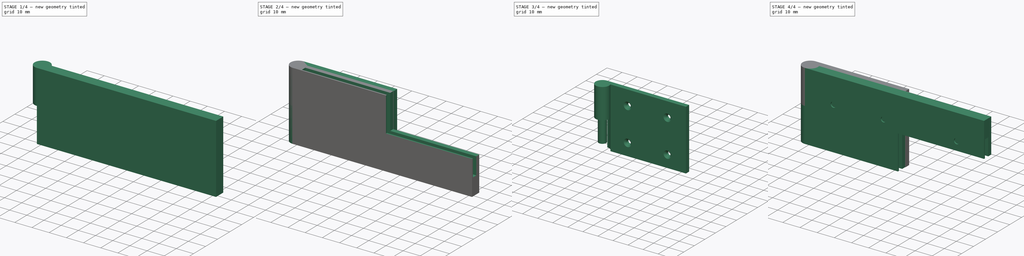
[diagram: build sequence overview — one tinted view per stage of 4, left to right]
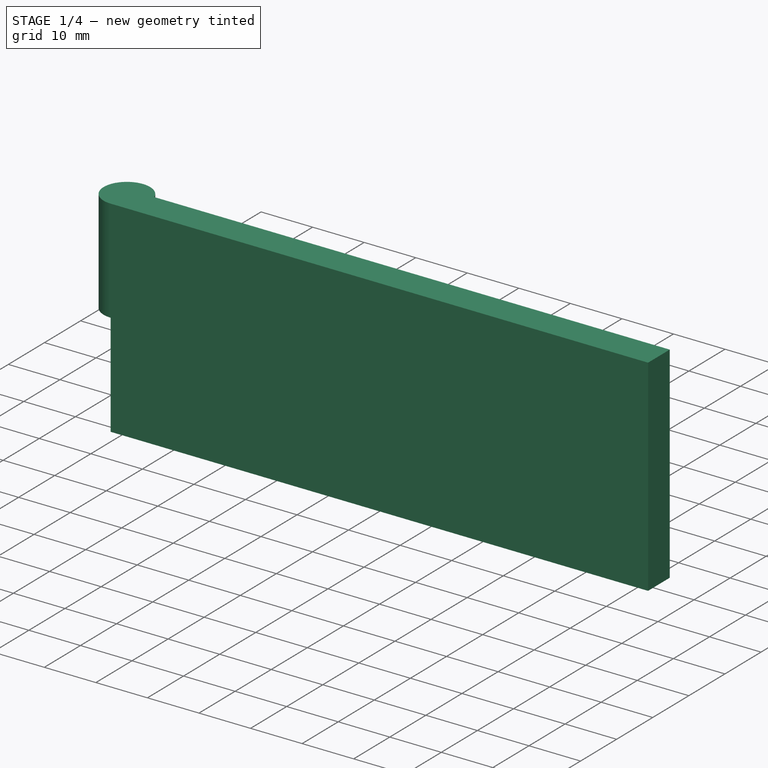
[diagram: stage 1 of 4 — iso view after this stage's code; geometry added in this stage tinted green]
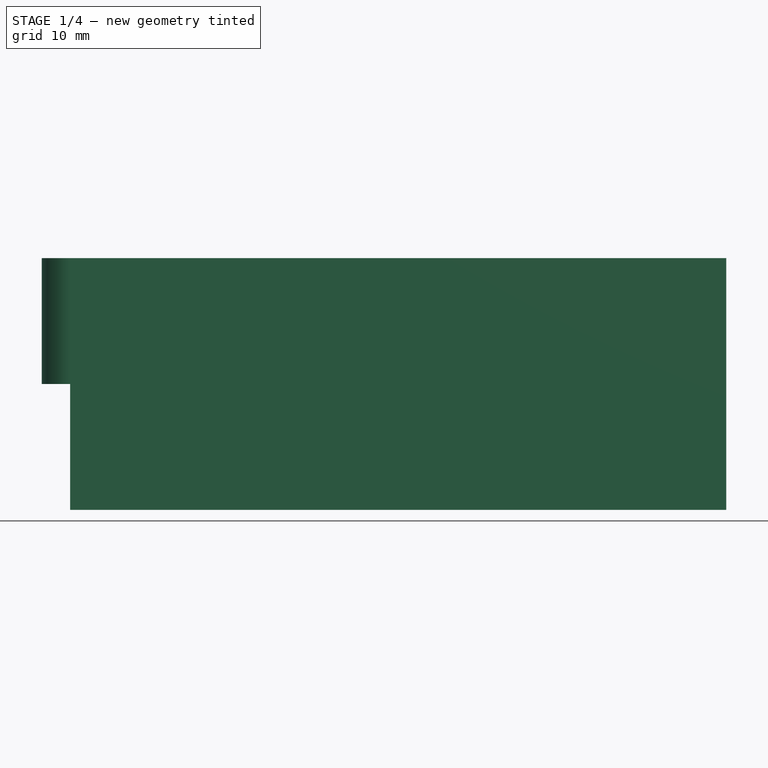
[diagram: stage 1 of 4 — front view after this stage's code; geometry added in this stage tinted green]
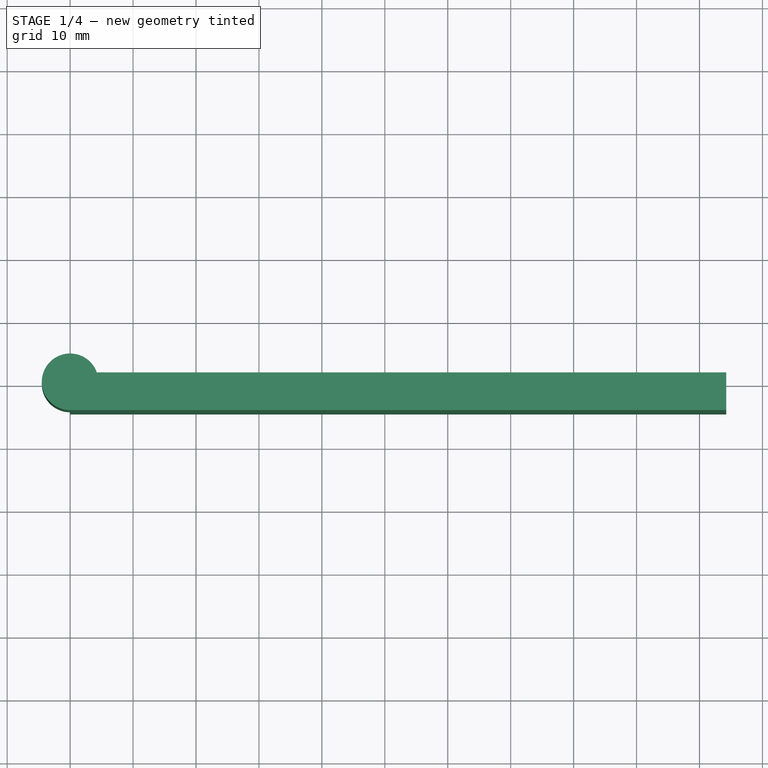
[diagram: stage 1 of 4 — top view after this stage's code; geometry added in this stage tinted green]
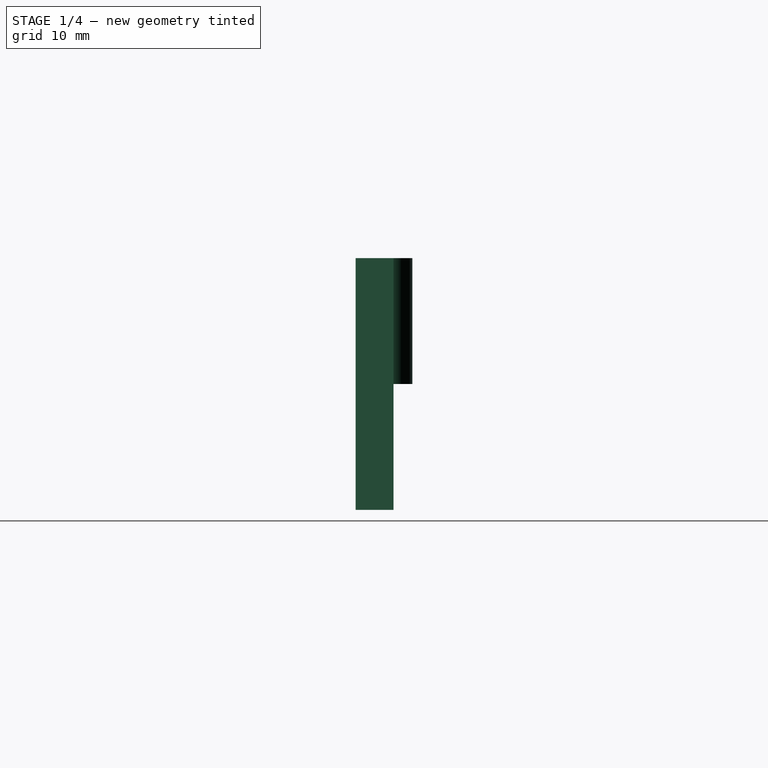
[diagram: stage 1 of 4 — right view after this stage's code; geometry added in this stage tinted green]
FCSTD DOCUMENT  (FreeCAD 0.16R6705 (Git))
Label: cerniera_fissa3
License: All rights reserved
LicenseURL: http://it.wikipedia.org/wiki/<copyright redacted>
objects: Sketcher::SketchObject×9, PartDesign::Pocket×7, PartDesign::Pad×2, Part::Mirroring×2, Part::Cut×1, PartDesign::Chamfer×1
note: 31 computed .brp shape members not serialized (recipe doc carries the construction recipe); baked Part::Feature solids carry a one-line shape summary decoded from their .brp

FEATURE [Sketcher::SketchObject] Sketch001
  sketch-geometry (4):
    g0: ArcOfCircle CenterX=0 CenterY=0 CenterZ=0 NormalX=0 NormalY=0 NormalZ=1 Radius=4.5 StartAngle=0.339837 EndAngle=4.71239
    g1: LineSegment StartX=4.24264 StartY=1.5 StartZ=0 EndX=104.243 EndY=1.5 EndZ=0
    g2: LineSegment StartX=104.243 StartY=1.5 StartZ=0 EndX=104.243 EndY=-4.5 EndZ=0
    g3: LineSegment StartX=104.243 StartY=-4.5 StartZ=0 EndX=0 EndY=-4.5 EndZ=0
  constraints (13):
    c: Radius(g0) = 4.5
    c: Coincident(g1,g2)
    c: Coincident(g2,g3)
    c: Horizontal(g1)
    c: Horizontal(g3)
    c: Vertical(g2)
    c: PointOnObject(g0,g1)
    c: PointOnObject(g0,g3)
    c: DistanceX(g1,g1) = 100
    c: Coincident(g0,g1)
    c: Coincident(g-1,g0)
    c: Coincident(g0,g3)
    c: DistanceY(g2,g1) = 6
FEATURE [PartDesign::Pad] Pad001
  Length = 40
  Length2 = 100
  Reversed = true
  Sketch = -> Sketch001
  Type = 0
FEATURE [Sketcher::SketchObject] Sketch002
  ExternalGeometry = -> [Pad001]
  Placement = pos=(0,0,-40) rot=(1,0,0;3.14159rad)
  Support = -> Pad001 [Face6]
  sketch-geometry (1):
    g0: Circle CenterX=0 CenterY=0 CenterZ=0 NormalX=0 NormalY=0 NormalZ=1 Radius=4.5
  constraints (1):
    c: Radius(g0) = 4.5
FEATURE [PartDesign::Pocket] Pocket
  Length = 20
  Sketch = -> Sketch002
  Type = 0
FEATURE [Sketcher::SketchObject] Sketch003
  ExternalGeometry = -> [Pocket]
  Placement = pos=(0,0,-20) rot=(1,0,0;3.14159rad)
  Support = -> Pocket [Face4]
  sketch-geometry (1):
    g0: Circle CenterX=0 CenterY=0 CenterZ=0 NormalX=0 NormalY=0 NormalZ=1 Radius=2.50741
FEATURE [PartDesign::Pocket] Pocket001
  Length = 15
  Sketch = -> Sketch003
  Type = 0
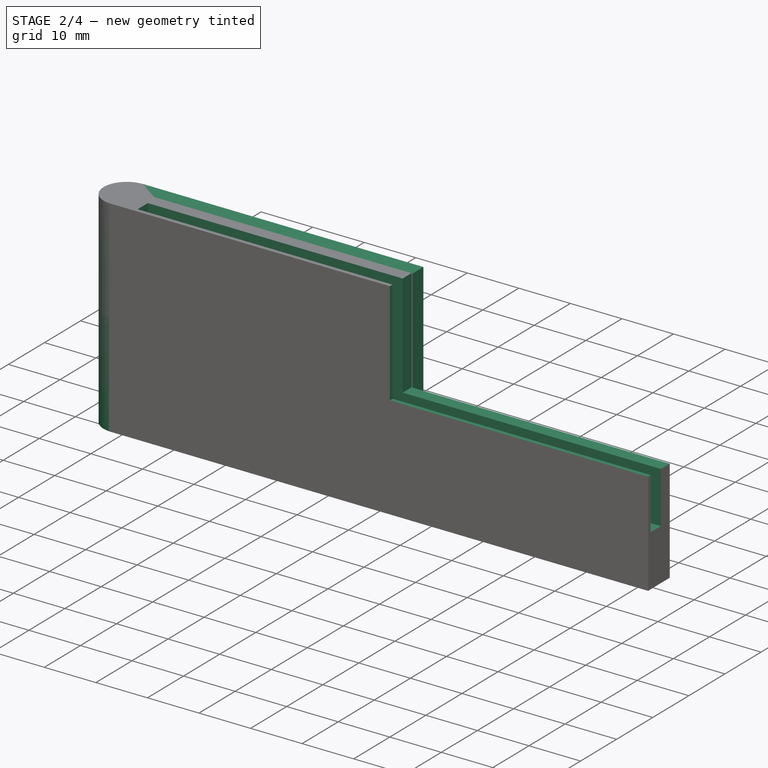
[diagram: stage 2 of 4 — iso view after this stage's code; geometry added in this stage tinted green]
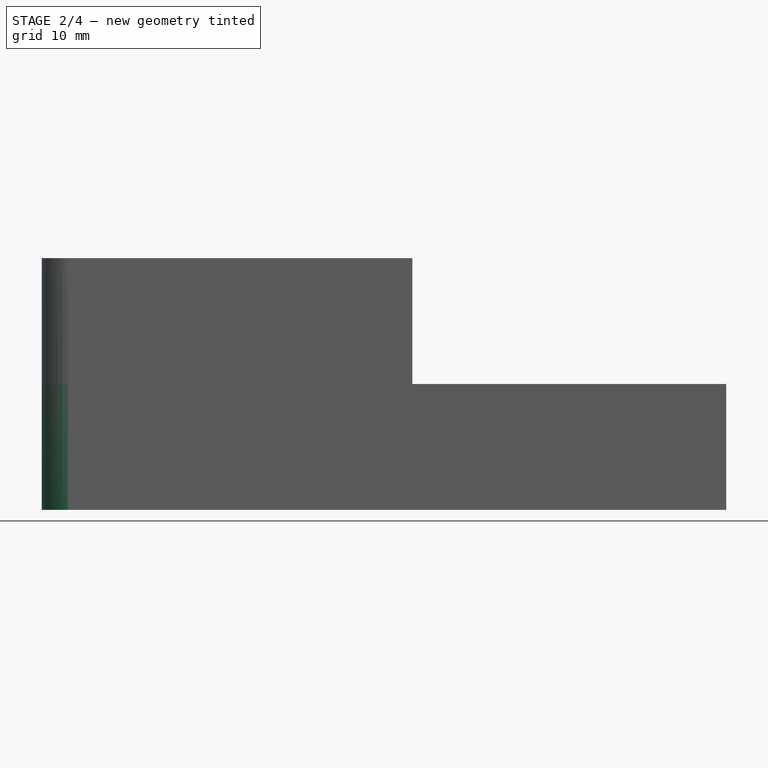
[diagram: stage 2 of 4 — front view after this stage's code; geometry added in this stage tinted green]
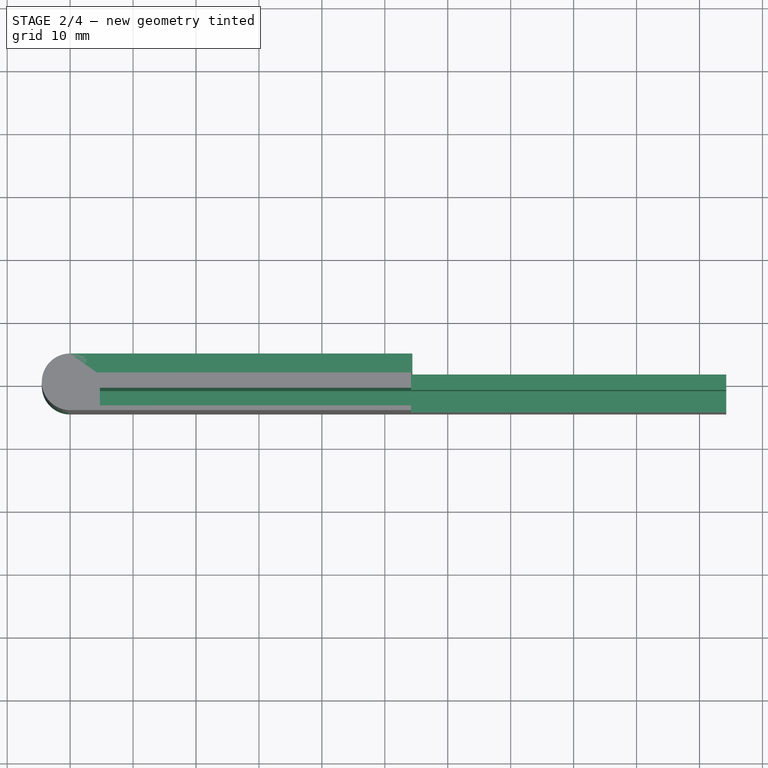
[diagram: stage 2 of 4 — top view after this stage's code; geometry added in this stage tinted green]
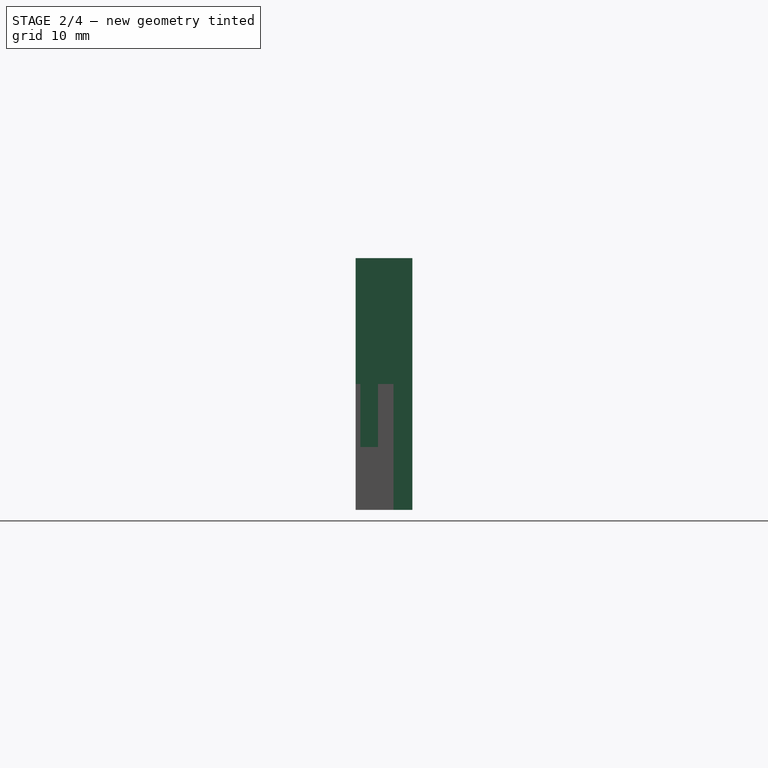
[diagram: stage 2 of 4 — right view after this stage's code; geometry added in this stage tinted green]
FEATURE [Sketcher::SketchObject] Sketch
  sketch-geometry (4):
    g0: ArcOfCircle CenterX=0 CenterY=0 CenterZ=0 NormalX=0 NormalY=0 NormalZ=1 Radius=4.5 StartAngle=1.59092 EndAngle=6.62281
    g1: LineSegment StartX=-0.0905348 StartY=4.49909 StartZ=0 EndX=54.3701 EndY=4.49909 EndZ=0
    g2: LineSegment StartX=54.3701 StartY=4.49909 StartZ=0 EndX=54.3701 EndY=1.49909 EndZ=0
    g3: LineSegment StartX=54.3701 StartY=1.49909 StartZ=0 EndX=4.24296 EndY=1.49909 EndZ=0
  constraints (10):
    c: Coincident(g1,g2)
    c: Coincident(g2,g3)
    c: Horizontal(g1)
    c: Horizontal(g3)
    c: Vertical(g2)
    c: Coincident(g-1,g0)
    c: DistanceY(g2,g1) = 3
    c: Coincident(g0,g1)
    c: Coincident(g0,g3)
    c: Radius(g0) = 4.5
FEATURE [PartDesign::Pad] Pad
  Length = 40
  Length2 = 100
  Reversed = true
  Sketch = -> Sketch
  Type = 0
FEATURE [Sketcher::SketchObject] Sketch004
  ExternalGeometry = -> [Pocket001]
  Support = -> Pocket001 [Face2]
  sketch-geometry (4):
    g0: LineSegment StartX=54.1645 StartY=1.5 StartZ=0 EndX=104.243 EndY=1.5 EndZ=0
    g1: LineSegment StartX=104.243 StartY=1.5 StartZ=0 EndX=104.243 EndY=-4.5 EndZ=0
    g2: LineSegment StartX=104.243 StartY=-4.5 StartZ=0 EndX=54.1645 EndY=-4.5 EndZ=0
    g3: LineSegment StartX=54.1645 StartY=-4.5 StartZ=0 EndX=54.1645 EndY=1.5 EndZ=0
  constraints (10):
    c: Coincident(g0,g1)
    c: Coincident(g1,g2)
    c: Coincident(g2,g3)
    c: Coincident(g3,g0)
    c: Horizontal(g0)
    c: Horizontal(g2)
    c: Vertical(g1)
    c: Vertical(g3)
    c: Coincident(g-5,g0)
    c: Coincident(g-5,g1)
FEATURE [PartDesign::Pocket] Pocket002
  Length = 20
  Sketch = -> Sketch004
  Type = 0
FEATURE [Sketcher::SketchObject] Sketch005
  ExternalGeometry = -> [Pocket002]
  Support = -> Pocket002 [Face2]
  sketch-geometry (4):
    g0: LineSegment StartX=4.72831 StartY=-0.954658 StartZ=0 EndX=104.243 EndY=-0.954658 EndZ=0
    g1: LineSegment StartX=104.243 StartY=-0.954658 StartZ=0 EndX=104.243 EndY=-3.75466 EndZ=0
    g2: LineSegment StartX=104.243 StartY=-3.75466 StartZ=0 EndX=4.72831 EndY=-3.75466 EndZ=0
    g3: LineSegment StartX=4.72831 StartY=-3.75466 StartZ=0 EndX=4.72831 EndY=-0.954658 EndZ=0
  constraints (10):
    c: Coincident(g0,g1)
    c: Coincident(g1,g2)
    c: Coincident(g2,g3)
    c: Coincident(g3,g0)
    c: Horizontal(g0)
    c: Horizontal(g2)
    c: Vertical(g1)
    c: Vertical(g3)
    c: DistanceY(g1,g0) = 2.8
    c: PointOnObject(g1,g-3)
FEATURE [PartDesign::Pocket] Pocket003  label="cerniera_mobile"
  Length = 30
  Sketch = -> Sketch005
  Type = 0
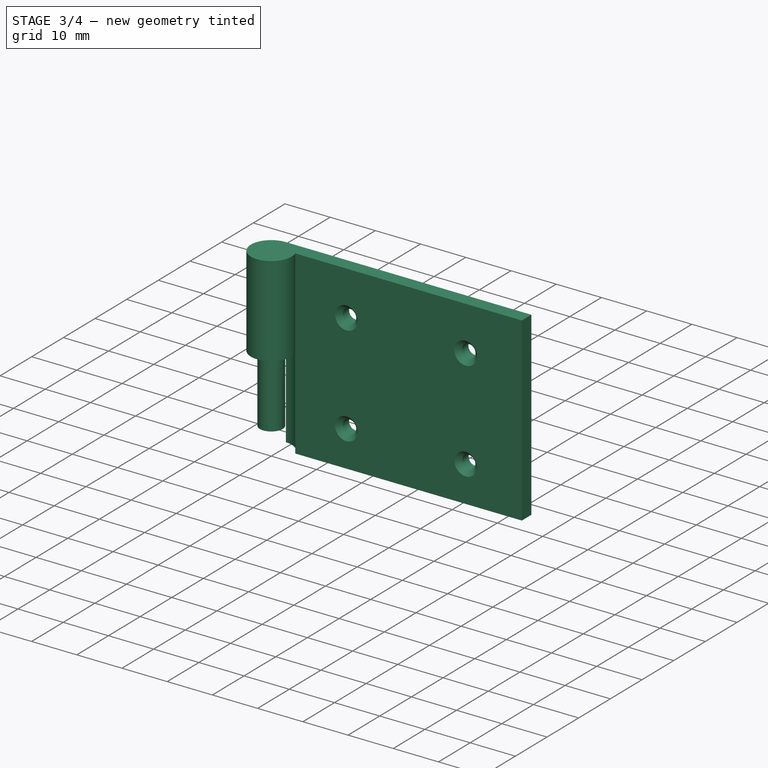
[diagram: stage 3 of 4 — iso view after this stage's code; geometry added in this stage tinted green]
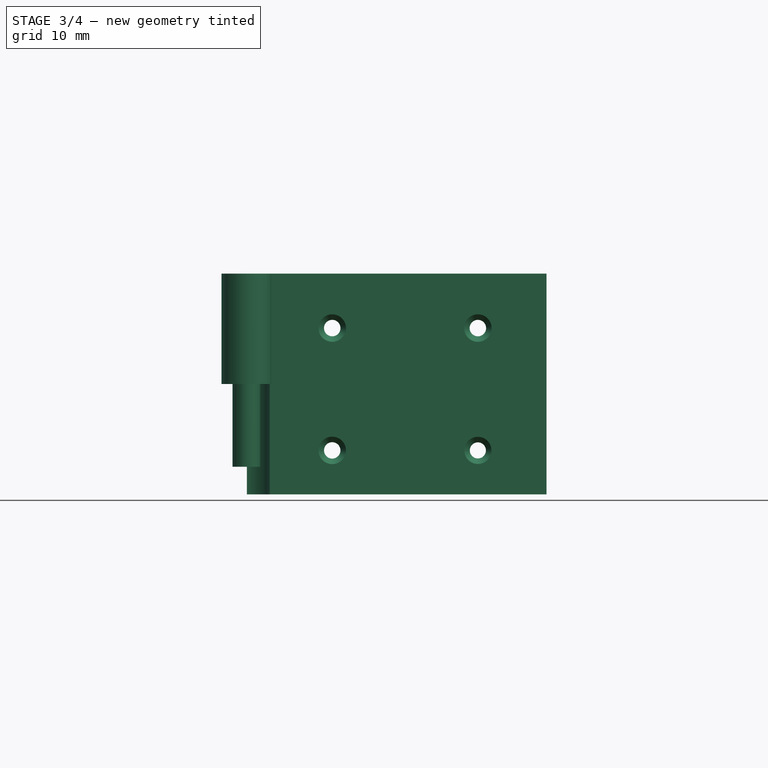
[diagram: stage 3 of 4 — front view after this stage's code; geometry added in this stage tinted green]
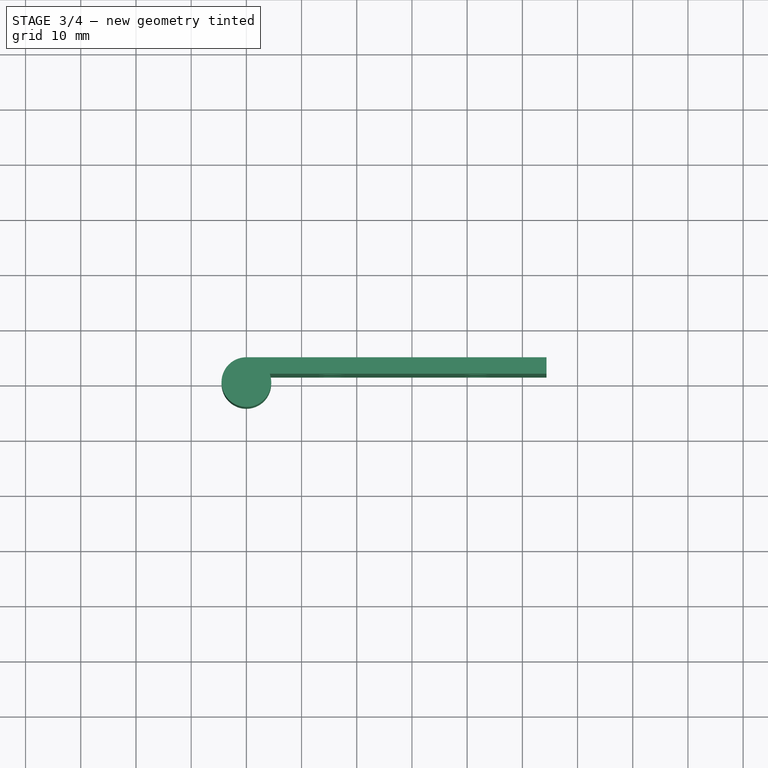
[diagram: stage 3 of 4 — top view after this stage's code; geometry added in this stage tinted green]
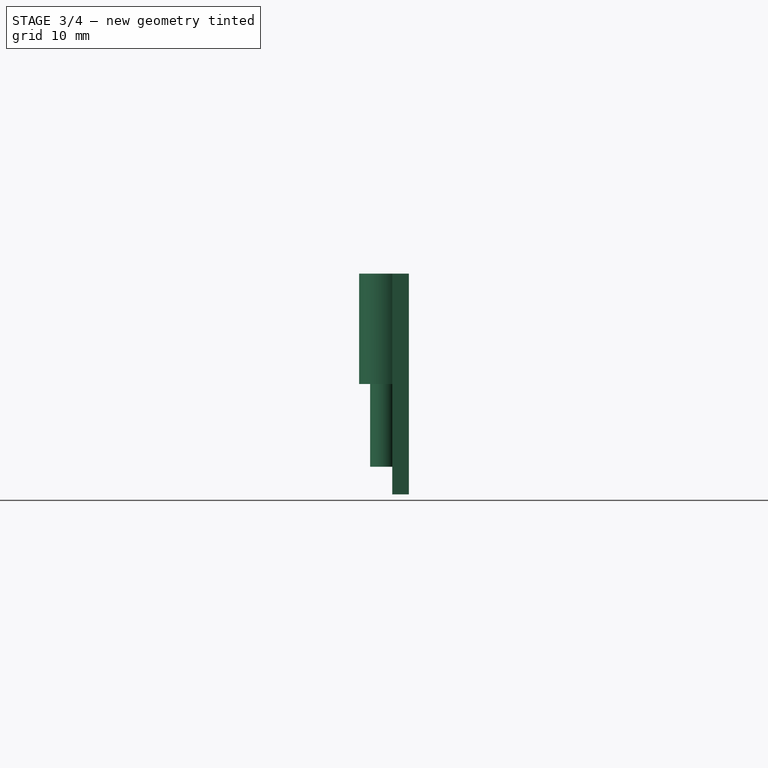
[diagram: stage 3 of 4 — right view after this stage's code; geometry added in this stage tinted green]
FEATURE [Part::Cut] Cut  label="cerniera_fissa"
  Base = -> Pad
  Tool = -> Pocket003
FEATURE [Sketcher::SketchObject] Sketch006
  Placement = pos=(0,1.5,0) rot=(1,0,0;1.5708rad)
  Support = -> Cut [Face10]
  sketch-geometry (6):
    g0: Circle CenterX=15.5573 CenterY=-7.97207 CenterZ=0 NormalX=0 NormalY=0 NormalZ=1 Radius=1.48659
    g1: Circle CenterX=41.944 CenterY=-7.97207 CenterZ=0 NormalX=0 NormalY=0 NormalZ=1 Radius=1.4574
    g2: LineSegment [constr] StartX=15.5573 StartY=-7.97207 StartZ=0 EndX=41.944 EndY=-7.97207 EndZ=0
    g3: LineSegment [constr] StartX=15.5573 StartY=-30.1329 StartZ=0 EndX=41.944 EndY=-30.1329 EndZ=0
    g4: Circle CenterX=15.5573 CenterY=-30.1329 CenterZ=0 NormalX=0 NormalY=0 NormalZ=1 Radius=1.49072
    g5: Circle CenterX=41.944 CenterY=-30.1329 CenterZ=0 NormalX=0 NormalY=0 NormalZ=1 Radius=1.49072
  constraints (8):
    c: Horizontal(g2)
    c: Coincident(g2,g1)
    c: Coincident(g2,g0)
    c: Horizontal(g3)
    c: DistanceX(g3,g0) = 0
    c: Equal(g2,g3)
    c: Coincident(g3,g4)
    c: Coincident(g3,g5)
FEATURE [PartDesign::Pocket] Pocket004  label="cerniera_fissa_buchi"
  Length = 5
  Sketch = -> Sketch006
  Type = 1
FEATURE [PartDesign::Chamfer] Chamfer  label="cerniera_fissa_buchi_svasati"
  Base = -> Pocket004 [Edge38,Edge35,Edge36,Edge37]
  Size = 1
FEATURE [Part::Mirroring] Part__Mirroring001  label="cerniera_fissa_buchi_svasati (Mirror #2)"
  Base = (0,0,0)
  Normal = (0,0,1)
  Source = -> Chamfer
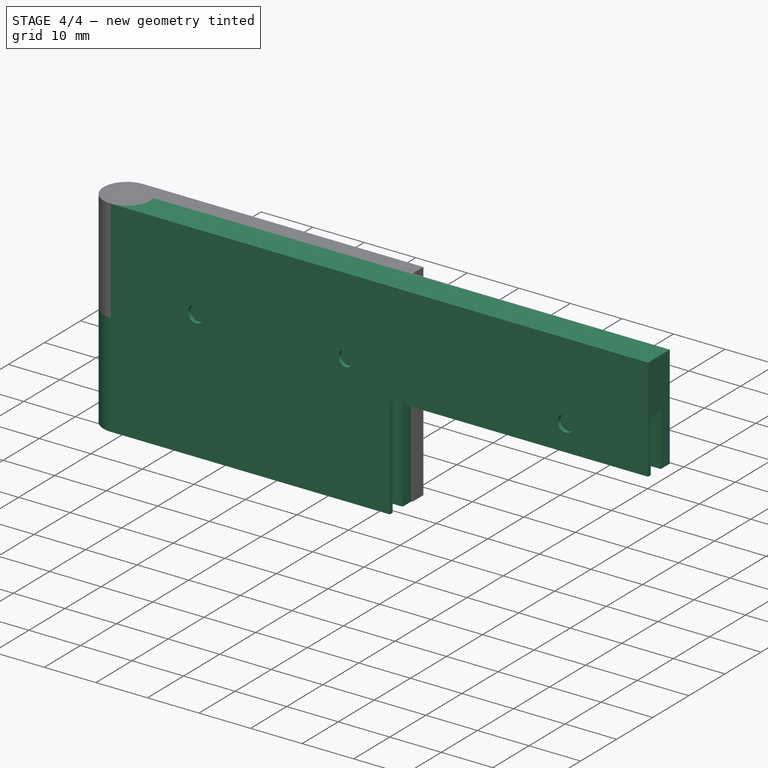
[diagram: stage 4 of 4 — iso view after this stage's code; geometry added in this stage tinted green]
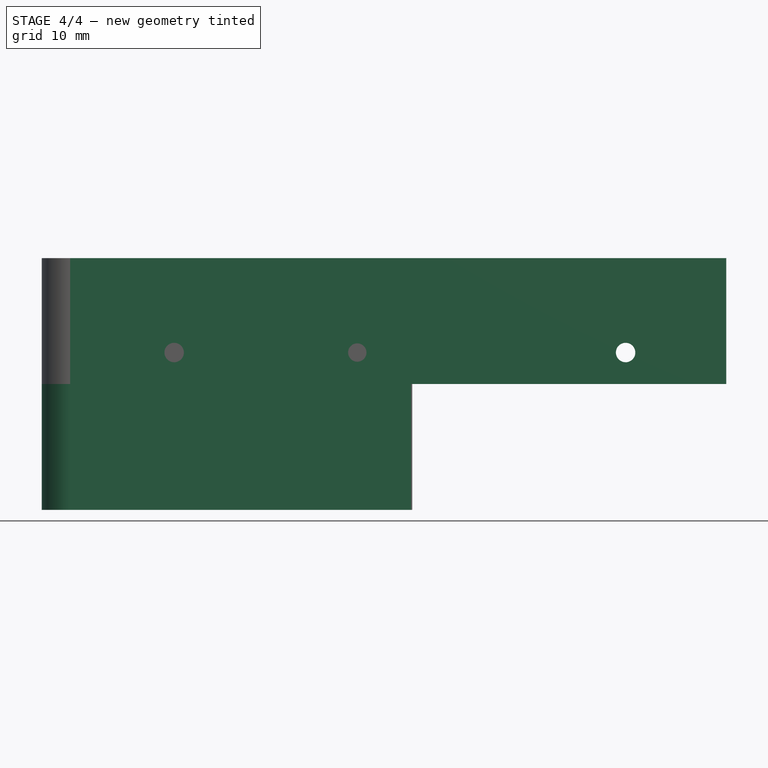
[diagram: stage 4 of 4 — front view after this stage's code; geometry added in this stage tinted green]
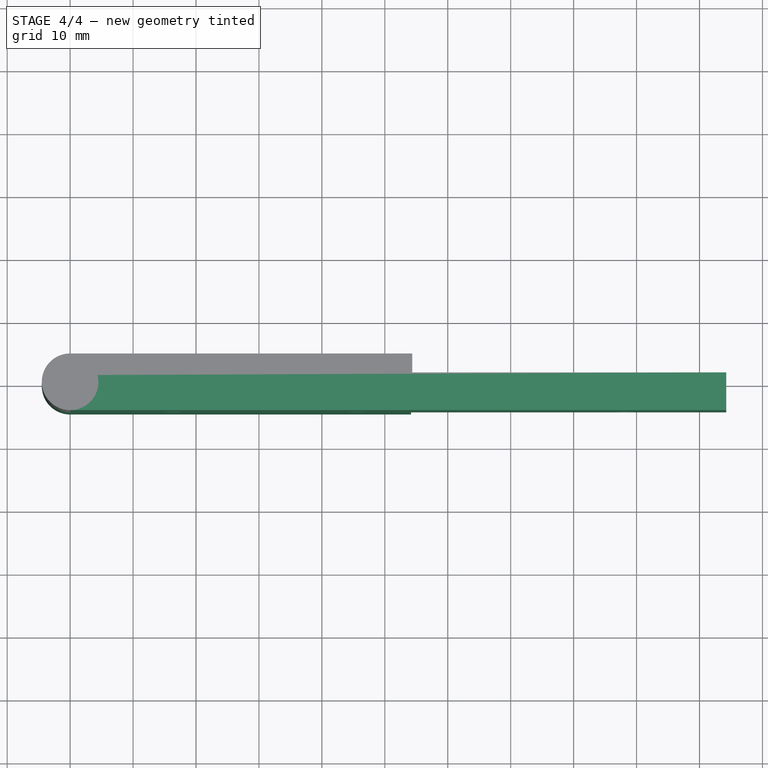
[diagram: stage 4 of 4 — top view after this stage's code; geometry added in this stage tinted green]
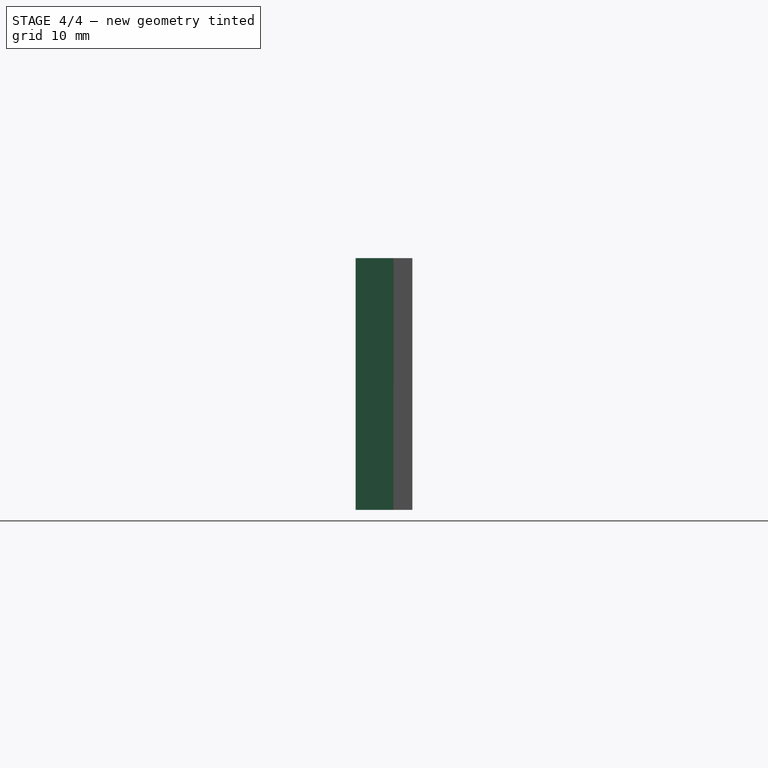
[diagram: stage 4 of 4 — right view after this stage's code; geometry added in this stage tinted green]
FEATURE [Sketcher::SketchObject] Sketch007
  ExternalGeometry = -> [Pocket003]
  Placement = pos=(0,-4.5,0) rot=(1,0,0;1.5708rad)
  Support = -> Pocket003 [Face3]
  sketch-geometry (4):
    g0: LineSegment [constr] StartX=10.9815 StartY=-25 StartZ=0 EndX=99.221 EndY=-25 EndZ=0
    g1: Circle CenterX=88.2587 CenterY=-25 CenterZ=0 NormalX=0 NormalY=0 NormalZ=1 Radius=1.54307
    g2: Circle CenterX=16.5303 CenterY=-25 CenterZ=0 NormalX=0 NormalY=0 NormalZ=1 Radius=1.54307
    g3: Circle CenterX=45.6277 CenterY=-25 CenterZ=0 NormalX=0 NormalY=0 NormalZ=1 Radius=1.45762
  constraints (5):
    c: Horizontal(g0)
    c: DistanceY(g0,g-3) = 5
    c: PointOnObject(g2,g0)
    c: PointOnObject(g1,g0)
    c: PointOnObject(g3,g0)
FEATURE [PartDesign::Pocket] Pocket005
  Length = 5
  Sketch = -> Sketch007
  Type = 1
FEATURE [Sketcher::SketchObject] Sketch008
  ExternalGeometry = -> [Pocket005]
  Placement = pos=(0,1.5,0) rot=(0,0.707107,0.707107;3.14159rad)
  Support = -> Pocket005 [Face5]
  sketch-geometry (21):
    g0: LineSegment StartX=-42.6923 StartY=-23.3886 StartZ=0 EndX=-45.5555 EndY=-21.6521 EndZ=0
    g1: LineSegment StartX=-45.5555 StartY=-21.6521 StartZ=0 EndX=-48.4909 EndY=-23.2635 EndZ=0
    g2: LineSegment StartX=-48.4909 StartY=-23.2635 StartZ=0 EndX=-48.5632 EndY=-26.6114 EndZ=0
    g3: LineSegment StartX=-48.5632 StartY=-26.6114 StartZ=0 EndX=-45.6999 EndY=-28.3479 EndZ=0
    g4: LineSegment StartX=-45.6999 StartY=-28.3479 StartZ=0 EndX=-42.7645 EndY=-26.7365 EndZ=0
    g5: LineSegment StartX=-42.7645 StartY=-26.7365 StartZ=0 EndX=-42.6923 EndY=-23.3886 EndZ=0
    g6: Circle [constr] CenterX=-45.6277 CenterY=-25 CenterZ=0 NormalX=0 NormalY=0 NormalZ=1 Radius=3.34863
    g7: LineSegment StartX=-13.6556 StartY=-23.2827 StartZ=0 EndX=-16.5802 EndY=-21.6517 EndZ=0
    g8: LineSegment StartX=-16.5802 StartY=-21.6517 StartZ=0 EndX=-19.4549 EndY=-23.369 EndZ=0
    g9: LineSegment StartX=-19.4549 StartY=-23.369 StartZ=0 EndX=-19.4051 EndY=-26.7173 EndZ=0
    g10: LineSegment StartX=-19.4051 StartY=-26.7173 StartZ=0 EndX=-16.4805 EndY=-28.3483 EndZ=0
    g11: LineSegment StartX=-16.4805 StartY=-28.3483 StartZ=0 EndX=-13.6057 EndY=-26.631 EndZ=0
    g12: LineSegment StartX=-13.6057 StartY=-26.631 StartZ=0 EndX=-13.6556 EndY=-23.2827 EndZ=0
    g13: Circle [constr] CenterX=-16.5303 CenterY=-25 CenterZ=0 NormalX=0 NormalY=0 NormalZ=1 Radius=3.34863
    g14: LineSegment StartX=-85.3306 StartY=-26.6245 StartZ=0 EndX=-85.3878 EndY=-23.2764 EndZ=0
    g15: LineSegment StartX=-85.3878 StartY=-23.2764 StartZ=0 EndX=-88.316 EndY=-21.6519 EndZ=0
    g16: LineSegment StartX=-88.316 StartY=-21.6519 StartZ=0 EndX=-91.1869 EndY=-23.3755 EndZ=0
    g17: LineSegment StartX=-91.1869 StartY=-23.3755 StartZ=0 EndX=-91.1297 EndY=-26.7236 EndZ=0
    g18: LineSegment StartX=-91.1297 StartY=-26.7236 StartZ=0 EndX=-88.2015 EndY=-28.3481 EndZ=0
    g19: LineSegment StartX=-88.2015 StartY=-28.3481 StartZ=0 EndX=-85.3306 EndY=-26.6245 EndZ=0
    g20: Circle [constr] CenterX=-88.2587 CenterY=-25 CenterZ=0 NormalX=0 NormalY=0 NormalZ=1 Radius=3.34863
  constraints (45):
    c: Coincident(g0,g1)
    c: Coincident(g1,g2)
    c: Coincident(g2,g3)
    c: Coincident(g3,g4)
    c: Coincident(g4,g5)
    c: Coincident(g5,g0)
    c: Equal(g0, g1-g5) x5
    c: PointOnObject(g0,g6)
    c: PointOnObject(g1,g6)
    c: PointOnObject(g2,g6)
    c: PointOnObject(g3,g6)
    c: PointOnObject(g4,g6)
    c: PointOnObject(g5,g6)
    c: Coincident(g-4,g6)
    c: Distance(g6,g5) = 2.9
    c: Coincident(g7,g8)
    c: Coincident(g8,g9)
    c: Coincident(g9,g10)
    c: Coincident(g10,g11)
    c: Coincident(g11,g12)
    c: Coincident(g12,g7)
    c: Equal(g7, g8-g12) x5
    c: PointOnObject(g7,g13)
    c: PointOnObject(g8,g13)
    c: PointOnObject(g9,g13)
    c: PointOnObject(g10,g13)
    c: PointOnObject(g11,g13)
    c: PointOnObject(g12,g13)
    c: Coincident(g-3,g13)
    c: Distance(g13,g12) = 2.9
    c: Coincident(g14,g15)
    c: Coincident(g15,g16)
    c: Coincident(g16,g17)
    c: Coincident(g17,g18)
    c: Coincident(g18,g19)
    c: Coincident(g19,g14)
    c: Equal(g14, g15-g19) x5
    c: PointOnObject(g14,g20)
    c: PointOnObject(g15,g20)
    c: PointOnObject(g16,g20)
    c: PointOnObject(g17,g20)
    c: PointOnObject(g18,g20)
    c: PointOnObject(g19,g20)
    c: Coincident(g-5,g20)
    c: Distance(g20,g14) = 2.9
FEATURE [PartDesign::Pocket] Pocket006  label="cerniera_mobile_con_dadi"
  Length = 2
  Sketch = -> Sketch008
  Type = 0
FEATURE [Part::Mirroring] Part__Mirroring  label="cerniera_mobile_con_dadi (Mirror #1)"
  Base = (0,0,0)
  Normal = (0,0,1)
  Source = -> Pocket006
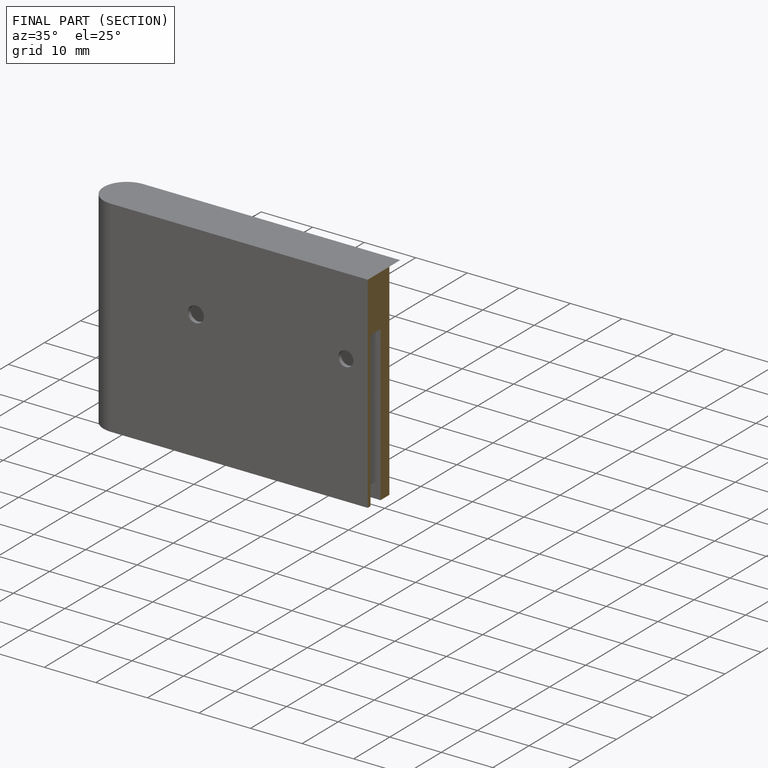
[diagram: finished part — half-section view (interior)]
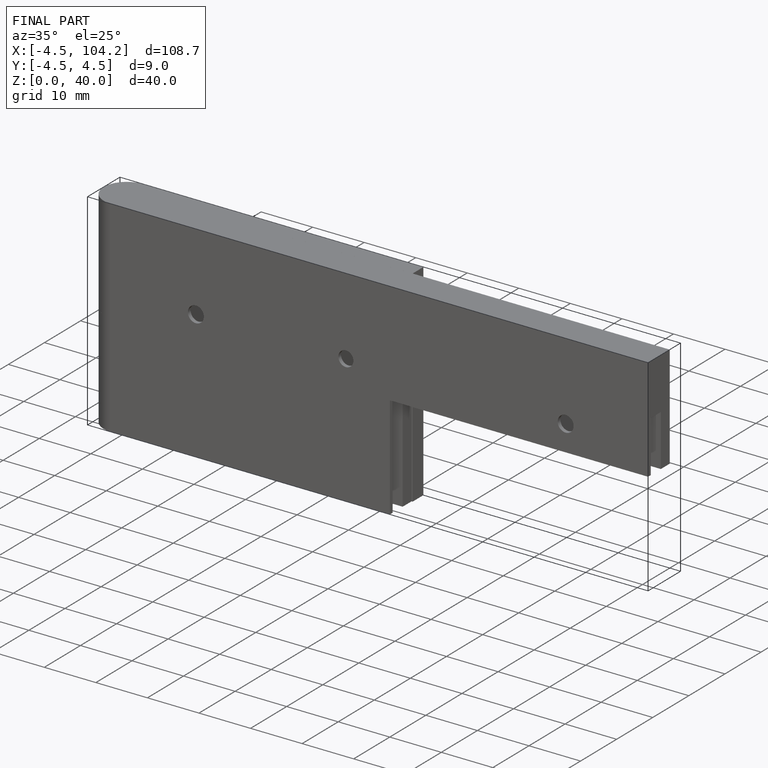
[diagram: finished part — iso view with bounding-box wireframe]
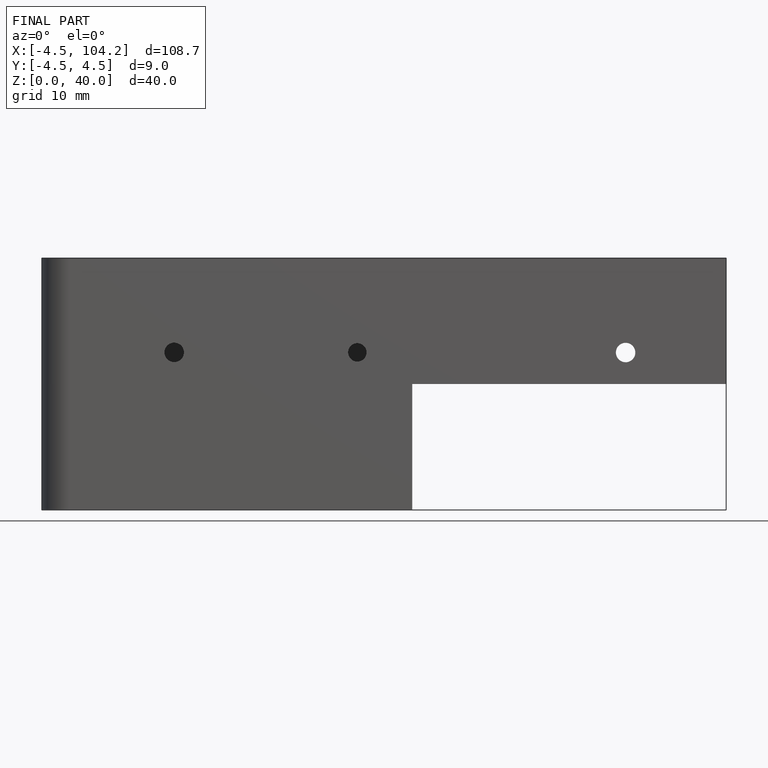
[diagram: finished part — front view with bounding-box wireframe]
